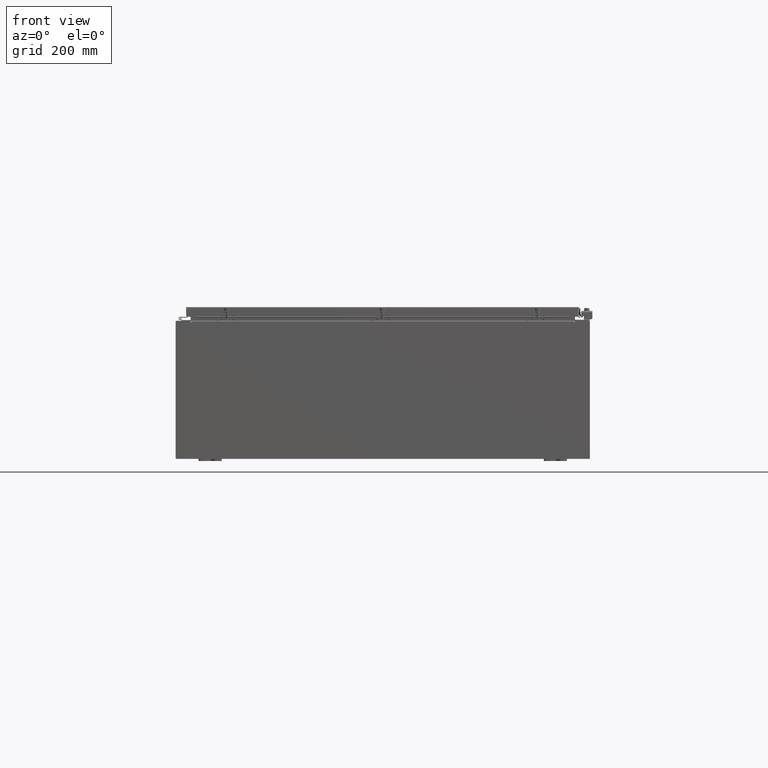
[diagram: clean part render]
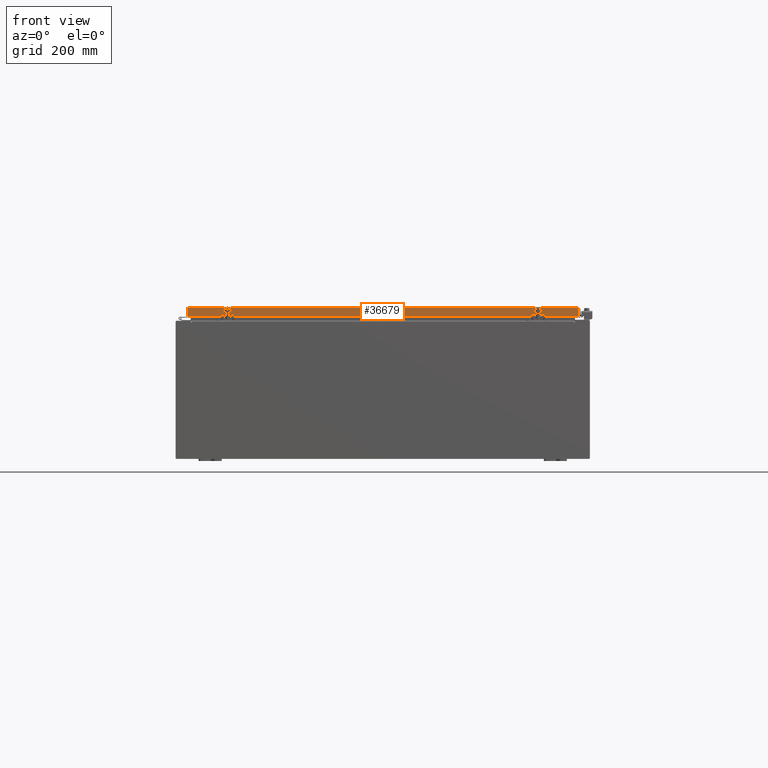
[diagram: same view with one face highlighted and labeled with its STEP entity id]
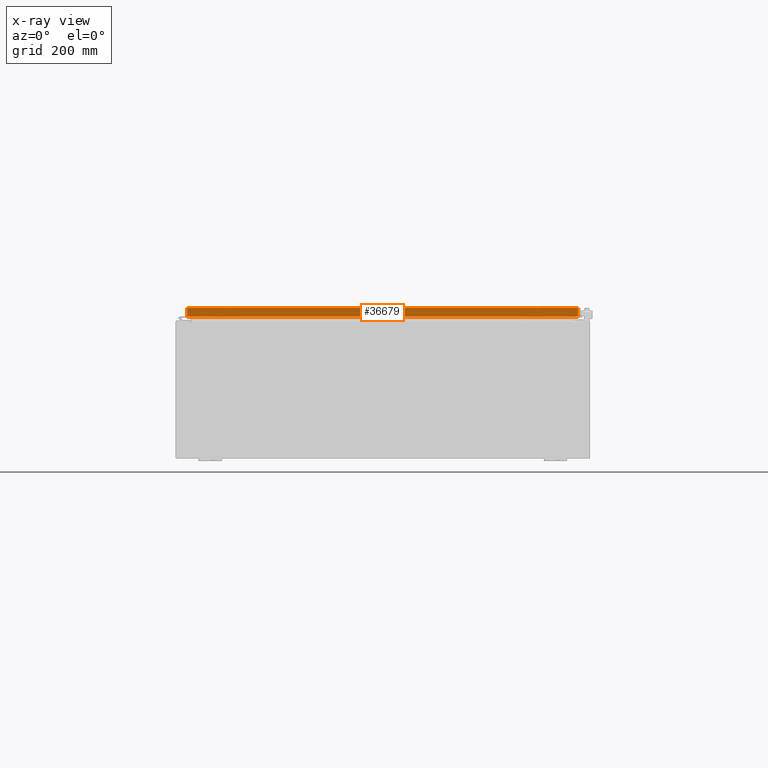
[diagram: x-ray of the same camera — body ghosted, the highlighted face saturated]
A machine part, front view. The second image highlights one B-rep face of the part: STEP entity #36679.
The next image is the same camera in x-ray: the body ghosted, the highlighted face saturated — about 0% of this face is hidden behind the body in this view.
In plain terms, the highlighted planar face has unit normal (-0, 1, -0).
Its self-contained STEP definition (entity closure, byte-faithful):
#1708 = CARTESIAN_POINT ( 'NONE',  ( 17.07799999999999900, -23.09400000000000500, -0.8499999999999999800 ) ) ;
#2061 = DIRECTION ( 'NONE',  ( -1.000000000000000000, 0.0000000000000000000, 0.0000000000000000000 ) ) ;
#2840 = CARTESIAN_POINT ( 'NONE',  ( 16.98915786437626700, -23.09400000000000100, -0.07470000000000015500 ) ) ;
#3821 = DIRECTION ( 'NONE',  ( 0.0000000000000000000, 5.637761885544720300E-015, 1.000000000000000000 ) ) ;
#4601 = LINE ( 'NONE', #13847, #15967 ) ;
#6760 = VERTEX_POINT ( 'NONE', #44085 ) ;
#8405 = ORIENTED_EDGE ( 'NONE', *, *, #54243, .F. ) ;
#9265 = CARTESIAN_POINT ( 'NONE',  ( -16.98915786437626700, -23.09400000000000100, -0.08769999999999589200 ) ) ;
#11194 = VERTEX_POINT ( 'NONE', #34372 ) ;
#11475 = EDGE_LOOP ( 'NONE', ( #38554, #20614, #11633, #8405, #44684, #41329 ) ) ;
#11633 = ORIENTED_EDGE ( 'NONE', *, *, #51994, .F. ) ;
#12557 = CARTESIAN_POINT ( 'NONE',  ( 17.07799999999999900, -23.09400000000000500, -0.8499999999999999800 ) ) ;
#13238 = EDGE_CURVE ( 'NONE', #15728, #11194, #46505, .T. ) ;
#13240 = AXIS2_PLACEMENT_3D ( 'NONE', #20809, #29421, #3821 ) ;
#13847 = CARTESIAN_POINT ( 'NONE',  ( 17.07799999999999900, -23.09400000000000100, -0.08769999999999589200 ) ) ;
#14665 = VECTOR ( 'NONE', #29747, 39.37007874015748100 ) ;
#15728 = VERTEX_POINT ( 'NONE', #9265 ) ;
#15967 = VECTOR ( 'NONE', #18166, 39.37007874015748100 ) ;
#16424 = EDGE_CURVE ( 'NONE', #15728, #36369, #4601, .T. ) ;
#18166 = DIRECTION ( 'NONE',  ( 1.000000000000000000, 6.989207801985715800E-031, -3.922586267643549700E-045 ) ) ;
#19127 = VECTOR ( 'NONE', #27517, 39.37007874015748100 ) ;
#20614 = ORIENTED_EDGE ( 'NONE', *, *, #13238, .T. ) ;
#20809 = CARTESIAN_POINT ( 'NONE',  ( 0.0000000000000000000, -23.09400000000000100, 1.311287036958846300E-013 ) ) ;
#22440 = LINE ( 'NONE', #23372, #43802 ) ;
#23372 = CARTESIAN_POINT ( 'NONE',  ( 16.23915786437626700, -23.09400000000000500, -0.8500000000000043100 ) ) ;
#24071 = DIRECTION ( 'NONE',  ( 0.0000000000000000000, -5.637761885544720300E-015, -1.000000000000000000 ) ) ;
#26031 = LINE ( 'NONE', #12557, #14665 ) ;
#27517 = DIRECTION ( 'NONE',  ( -1.000000000000000000, -8.758115402030108600E-047, 1.239713195391617400E-016 ) ) ;
#27823 = EDGE_CURVE ( 'NONE', #36369, #36644, #29786, .T. ) ;
#29421 = DIRECTION ( 'NONE',  ( -6.989207801985715000E-031, 1.000000000000000000, -5.637761885544720300E-015 ) ) ;
#29747 = DIRECTION ( 'NONE',  ( -1.000000000000000000, -8.758115402030108600E-047, 1.239713195391617400E-016 ) ) ;
#29786 = LINE ( 'NONE', #2840, #39798 ) ;
#32985 = FACE_OUTER_BOUND ( 'NONE', #11475, .T. ) ;
#33320 = VERTEX_POINT ( 'NONE', #40132 ) ;
#33824 = VECTOR ( 'NONE', #24071, 39.37007874015748100 ) ;
#34372 = CARTESIAN_POINT ( 'NONE',  ( -16.98915786437626700, -23.09400000000000500, -0.8499999999999955400 ) ) ;
#36369 = VERTEX_POINT ( 'NONE', #55161 ) ;
#36644 = VERTEX_POINT ( 'NONE', #41755 ) ;
#36679 = ADVANCED_FACE ( 'NONE', ( #32985 ), #54953, .F. ) ;
#38554 = ORIENTED_EDGE ( 'NONE', *, *, #16424, .F. ) ;
#39798 = VECTOR ( 'NONE', #45608, 39.37007874015748100 ) ;
#40132 = CARTESIAN_POINT ( 'NONE',  ( 16.23915786437626400, -23.09400000000000500, -0.8500000000000043100 ) ) ;
#40495 = LINE ( 'NONE', #1708, #19127 ) ;
#41329 = ORIENTED_EDGE ( 'NONE', *, *, #27823, .F. ) ;
#41755 = CARTESIAN_POINT ( 'NONE',  ( 16.98915786437626700, -23.09400000000000500, -0.8499999999999999800 ) ) ;
#43802 = VECTOR ( 'NONE', #2061, 39.37007874015748100 ) ;
#44085 = CARTESIAN_POINT ( 'NONE',  ( -16.23915786437626700, -23.09400000000000500, -0.8500000000000043100 ) ) ;
#44684 = ORIENTED_EDGE ( 'NONE', *, *, #46760, .F. ) ;
#45608 = DIRECTION ( 'NONE',  ( -0.0000000000000000000, -5.637761885544720300E-015, -1.000000000000000000 ) ) ;
#46505 = LINE ( 'NONE', #49627, #33824 ) ;
#46760 = EDGE_CURVE ( 'NONE', #36644, #33320, #40495, .T. ) ;
#49627 = CARTESIAN_POINT ( 'NONE',  ( -16.98915786437627100, -23.09400000000000100, 1.311287036958846300E-013 ) ) ;
#51994 = EDGE_CURVE ( 'NONE', #6760, #11194, #26031, .T. ) ;
#54243 = EDGE_CURVE ( 'NONE', #33320, #6760, #22440, .T. ) ;
#54953 = PLANE ( 'NONE',  #13240 ) ;
#55161 = CARTESIAN_POINT ( 'NONE',  ( 16.98915786437626700, -23.09400000000000100, -0.08769999999999589200 ) ) ;